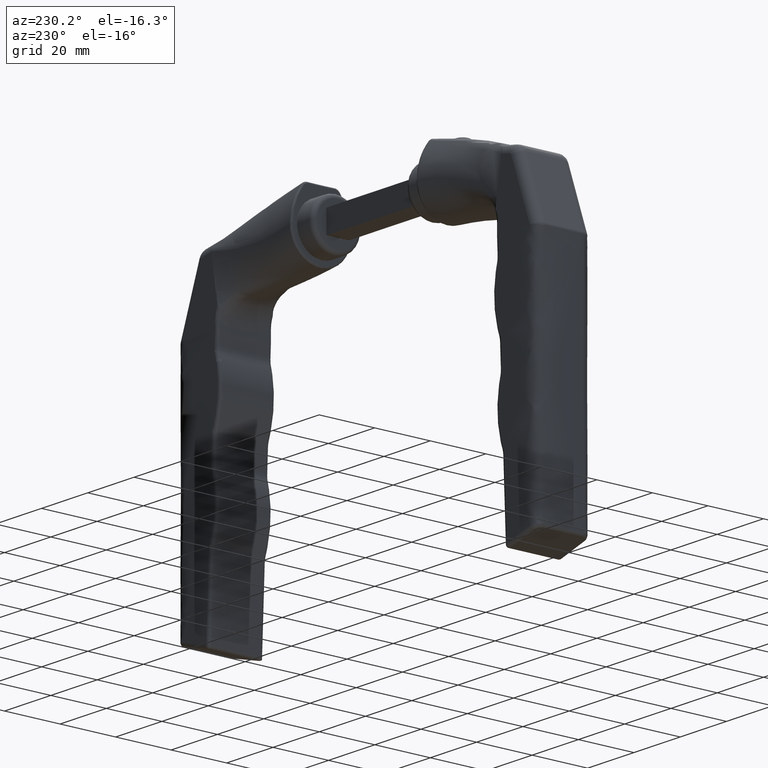
[diagram: clean part render]
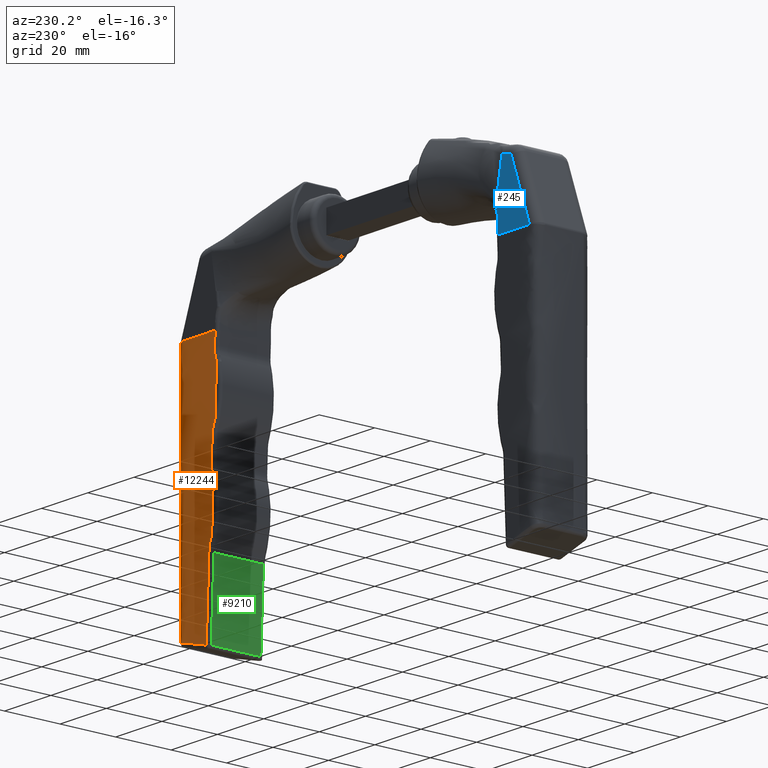
[diagram: same view with three faces highlighted in distinct colors, each labeled with its STEP entity id]
A machine part, auxiliary view with three faces highlighted in distinct colors.
Their STEP definitions:

[orange] entity #12244 — the highlighted face is a freeform B-spline surface patch.
#17 = CARTESIAN_POINT ( 'NONE',  ( -52.17979368904141069, 9.900000000000000355, -34.35993136533918602 ) ) ;
#263 = CARTESIAN_POINT ( 'NONE',  ( -23.40195693432042745, 9.611099347574652896, -49.18895766665092140 ) ) ;
#428 = ORIENTED_EDGE ( 'NONE', *, *, #5237, .F. ) ;
#590 = CARTESIAN_POINT ( 'NONE',  ( -110.2637938839346532, 9.899999879651057100, -48.00308852158844530 ) ) ;
#662 = B_SPLINE_SURFACE_WITH_KNOTS ( 'NONE', 3, 1, ( 
 ( #9048, #3000 ),
 ( #2790, #1927 ),
 ( #14119, #15296 ),
 ( #3202, #9318 ),
 ( #8104, #705 ),
 ( #10394, #1870 ),
 ( #10332, #3097 ),
 ( #13955, #11635 ),
 ( #15141, #14059 ),
 ( #10505, #1978 ),
 ( #3265, #11791 ),
 ( #3149, #5672 ) ),
 .UNSPECIFIED., .F., .F., .F.,
 ( 4, 1, 1, 1, 2, 1, 1, 1, 4 ),
 ( 2, 2 ),
 ( 0.000000000000000000, 0.06827239340379069599, 0.1365447868075813920, 0.2048171802113721296, 0.2730895736151627839, 0.4548171802113720741, 0.6365447868075813087, 0.8182723934037905433, 1.000000000000000000 ),
 ( 0.000000000000000000, 1.000000000000000000 ),
 .UNSPECIFIED. ) ;
#705 = CARTESIAN_POINT ( 'NONE',  ( -23.24939219726212869, 9.730840118225692947, -49.07188427017772625 ) ) ;
#712 = VERTEX_POINT ( 'NONE', #2172 ) ;
#766 = CARTESIAN_POINT ( 'NONE',  ( -85.17979368904141779, 9.900000000000000355, -35.75908674334922210 ) ) ;
#779 = CARTESIAN_POINT ( 'NONE',  ( -27.21894308462057310, 9.900000000000000355, -34.30252347040249106 ) ) ;
#888 = CARTESIAN_POINT ( 'NONE',  ( -23.24939219726211448, 9.900000000000000355, -51.00000000000000711 ) ) ;
#1181 = ORIENTED_EDGE ( 'NONE', *, *, #4828, .T. ) ;
#1430 = CARTESIAN_POINT ( 'NONE',  ( -81.74991106238898908, 9.900000000000000355, -35.61366435780305295 ) ) ;
#1471 = CARTESIAN_POINT ( 'NONE',  ( -55.41245594902475347, 9.899999999999998579, -35.49789029310630895 ) ) ;
#1488 = CARTESIAN_POINT ( 'NONE',  ( -110.2671978391236820, 9.899999999999998579, -47.99117467842682316 ) ) ;
#1534 = CARTESIAN_POINT ( 'NONE',  ( -23.31210949120652387, 9.899999962649125962, -48.21121861218199456 ) ) ;
#1576 = EDGE_CURVE ( 'NONE', #14453, #9990, #14052, .T. ) ;
#1586 = B_SPLINE_CURVE_WITH_KNOTS ( 'NONE', 3,
 ( #14422, #10996, #6140, #1430 ),
 .UNSPECIFIED., .F., .F.,
 ( 4, 4 ),
 ( 5.928593550334433897E-17, 0.003407895719427037669 ),
 .UNSPECIFIED. ) ;
#1618 = CARTESIAN_POINT ( 'NONE',  ( -103.1464092253622766, 9.900000000000000355, -37.52174536705382479 ) ) ;
#1631 = CARTESIAN_POINT ( 'NONE',  ( -112.7301357624490947, 9.900000000000005684, -39.37089194678781467 ) ) ;
#1652 = CARTESIAN_POINT ( 'NONE',  ( -109.7118049940962976, 7.684108211965713586, -50.90212700242874888 ) ) ;
#1770 = CARTESIAN_POINT ( 'NONE',  ( -84.96250164950228623, 9.900000000000002132, -36.75077227378102407 ) ) ;
#1860 = CARTESIAN_POINT ( 'NONE',  ( -109.7228646504340901, 7.876506292746388027, -50.84322812906214750 ) ) ;
#1870 = CARTESIAN_POINT ( 'NONE',  ( -23.24939219726211448, 9.900000000000000355, -48.25212405897629253 ) ) ;
#1927 = CARTESIAN_POINT ( 'NONE',  ( -23.24939219726211448, 7.344657376404036597, -51.00000000000000711 ) ) ;
#1978 = CARTESIAN_POINT ( 'NONE',  ( -23.24939219726210027, 9.899999999999993250, -36.74007470275910947 ) ) ;
#1987 = CARTESIAN_POINT ( 'NONE',  ( -23.24939219726211093, 9.900000000000000355, -34.13421988033179844 ) ) ;
#2172 = CARTESIAN_POINT ( 'NONE',  ( -23.60204615867901623, 6.899999999999995914, -50.99999999999999289 ) ) ;
#2173 = EDGE_CURVE ( 'NONE', #712, #15573, #2207, .T. ) ;
#2207 = LINE ( 'NONE', #8317, #13460 ) ;
#2322 = CARTESIAN_POINT ( 'NONE',  ( -62.31236454806940372, 9.899999999999998579, -35.79043708777694377 ) ) ;
#2538 = ORIENTED_EDGE ( 'NONE', *, *, #3826, .T. ) ;
#2790 = CARTESIAN_POINT ( 'NONE',  ( -114.4475491599999941, 7.257574131600806666, -50.99999999999999289 ) ) ;
#2887 = CARTESIAN_POINT ( 'NONE',  ( -110.1186889457898133, 9.805786580331028901, -48.76500424711555581 ) ) ;
#2986 = CARTESIAN_POINT ( 'NONE',  ( -110.0827055223459610, 9.749104977096518354, -48.95460731831097689 ) ) ;
#3000 = CARTESIAN_POINT ( 'NONE',  ( -23.24939219726211448, 6.899999999999995914, -50.99999999999999289 ) ) ;
#3097 = CARTESIAN_POINT ( 'NONE',  ( -23.24939219726211448, 9.899999999999998579, -46.62388019980903664 ) ) ;
#3149 = CARTESIAN_POINT ( 'NONE',  ( -114.4475491599999941, 9.900000000000000355, -36.99999999999997868 ) ) ;
#3154 = VECTOR ( 'NONE', #8155, 1000.000000000000114 ) ;
#3202 = CARTESIAN_POINT ( 'NONE',  ( -114.4475491599998520, 9.084865584100654701, -50.18486558410059928 ) ) ;
#3265 = CARTESIAN_POINT ( 'NONE',  ( -114.4475491599999941, 9.900000000000000355, -37.95179161443797256 ) ) ;
#3297 = EDGE_CURVE ( 'NONE', #15573, #9843, #12266, .T. ) ;
#3826 = EDGE_CURVE ( 'NONE', #6890, #12358, #14692, .T. ) ;
#3877 = CARTESIAN_POINT ( 'NONE',  ( -49.83885601741741311, 9.900000000000000355, -34.53795280949714908 ) ) ;
#3887 = CARTESIAN_POINT ( 'NONE',  ( -58.86241024854708570, 9.900000000000000355, -35.64416369044163702 ) ) ;
#4035 = CARTESIAN_POINT ( 'NONE',  ( -105.8106822582752358, 9.900000000000000355, -37.63470694106859327 ) ) ;
#4049 = CARTESIAN_POINT ( 'NONE',  ( -23.48095009792866250, 9.193793941493034083, -49.87596852413667392 ) ) ;
#4068 = CARTESIAN_POINT ( 'NONE',  ( -110.2671978391236820, 9.899999999999998579, -47.99117467842682316 ) ) ;
#4163 = CARTESIAN_POINT ( 'NONE',  ( -109.6932480273108013, 6.998723821776618337, -50.99999901977171390 ) ) ;
#4180 = CARTESIAN_POINT ( 'NONE',  ( -63.39668257815249319, 9.900000000000000355, -35.44678677263048883 ) ) ;
#4196 = VECTOR ( 'NONE', #4667, 1000.000000000000000 ) ;
#4236 = B_SPLINE_CURVE_WITH_KNOTS ( 'NONE', 3,
 ( #8817, #9992, #13812, #11314, #6478, #4035, #1618, #11640, #11472, #1770 ),
 .UNSPECIFIED., .F., .F.,
 ( 4, 3, 3, 4 ),
 ( 0.000000000000000000, 0.001999999999999974888, 0.009999999999999974187, 0.02820024434555669368 ),
 .UNSPECIFIED. ) ;
#4276 = CARTESIAN_POINT ( 'NONE',  ( -28.26565381634490848, 9.900000000000002132, -34.34690259008469582 ) ) ;
#4399 = B_SPLINE_CURVE_WITH_KNOTS ( 'NONE', 3,
 ( #12418, #1534, #6344, #263, #11326, #8789, #4049, #7710, #12454, #12608, #12561, #5187, #7617, #5280, #5338, #13681 ),
 .UNSPECIFIED., .F., .F.,
 ( 4, 2, 2, 2, 2, 2, 2, 4 ),
 ( -1.726564283399581362E-05, 0.001208506832471242147, 0.001821393070123859771, 0.002434279307776477611, 0.003047165545429094801, 0.003660051783081712425, 0.004272938020734330482, 0.004885824258386946804 ),
 .UNSPECIFIED. ) ;
#4558 = ORIENTED_EDGE ( 'NONE', *, *, #8293, .T. ) ;
#4585 = LINE ( 'NONE', #888, #4196 ) ;
#4667 = DIRECTION ( 'NONE',  ( 1.941853346959449609E-16, 0.000000000000000000, 1.000000000000000000 ) ) ;
#4692 = CARTESIAN_POINT ( 'NONE',  ( -32.60967631569382519, 9.900000000000000355, -33.53018485106017010 ) ) ;
#4773 = EDGE_CURVE ( 'NONE', #9843, #15275, #12761, .T. ) ;
#4828 = EDGE_CURVE ( 'NONE', #8746, #712, #4399, .T. ) ;
#4918 = DIRECTION ( 'NONE',  ( -0.9991023873423596768, 0.000000000000000000, -0.04236059025553759461 ) ) ;
#5084 = VERTEX_POINT ( 'NONE', #5277 ) ;
#5087 = ORIENTED_EDGE ( 'NONE', *, *, #4773, .T. ) ;
#5131 = CARTESIAN_POINT ( 'NONE',  ( -110.4503617409896350, 9.899999999999998579, -47.35010102189612269 ) ) ;
#5187 = CARTESIAN_POINT ( 'NONE',  ( -23.58417078278439050, 7.899343372613341074, -50.82519040572457669 ) ) ;
#5237 = EDGE_CURVE ( 'NONE', #8746, #9990, #4585, .T. ) ;
#5277 = CARTESIAN_POINT ( 'NONE',  ( -65.60967631569383229, 9.900000000000000355, -34.92934022907022751 ) ) ;
#5280 = CARTESIAN_POINT ( 'NONE',  ( -23.60058249550115406, 7.308466585985742725, -50.97803242674540769 ) ) ;
#5299 = CARTESIAN_POINT ( 'NONE',  ( -110.2297454403744155, 9.894002062256708641, -48.18690767062148694 ) ) ;
#5338 = CARTESIAN_POINT ( 'NONE',  ( -23.60204537097393285, 7.104295412558561118, -50.99999971329877013 ) ) ;
#5423 = CARTESIAN_POINT ( 'NONE',  ( -23.24939219726211448, 9.900000000000000355, -47.80746668257225451 ) ) ;
#5496 = CARTESIAN_POINT ( 'NONE',  ( -110.2578323197761989, 9.899621673930306898, -48.04025620676864605 ) ) ;
#5625 = CARTESIAN_POINT ( 'NONE',  ( -25.19795230101819428, 9.900000000000000355, -34.21683619392412368 ) ) ;
#5672 = CARTESIAN_POINT ( 'NONE',  ( -23.24939219726211093, 9.900000000000000355, -33.13332146124181321 ) ) ;
#6074 = ORIENTED_EDGE ( 'NONE', *, *, #13979, .F. ) ;
#6094 = CARTESIAN_POINT ( 'NONE',  ( -51.96250164950243544, 9.900000000000000355, -35.35161689577105903 ) ) ;
#6140 = CARTESIAN_POINT ( 'NONE',  ( -82.83885601741737048, 9.900000000000000355, -35.93710818750718516 ) ) ;
#6311 = EDGE_LOOP ( 'NONE', ( #6074, #9824, #2538, #14530, #11220, #15108, #6352, #428, #1181, #8150, #9921, #5087, #8942, #4558 ) ) ;
#6344 = CARTESIAN_POINT ( 'NONE',  ( -23.34000882005271293, 9.827249227460697512, -48.61872612651425385 ) ) ;
#6349 = CARTESIAN_POINT ( 'NONE',  ( -32.60967631569382519, 9.900000000000000355, -33.53018485106017010 ) ) ;
#6352 = ORIENTED_EDGE ( 'NONE', *, *, #1576, .T. ) ;
#6426 = CARTESIAN_POINT ( 'NONE',  ( -64.49726146281822992, 9.900000000000000355, -35.15944937955630678 ) ) ;
#6441 = CARTESIAN_POINT ( 'NONE',  ( -111.5492462525791240, 9.900000000000002132, -43.50400523133281183 ) ) ;
#6478 = CARTESIAN_POINT ( 'NONE',  ( -108.4749552911881949, 9.900000000000002132, -37.74766851508336885 ) ) ;
#6605 = CARTESIAN_POINT ( 'NONE',  ( -109.6942039885926476, 7.099333056996577795, -50.99491987227452228 ) ) ;
#6655 = VERTEX_POINT ( 'NONE', #14087 ) ;
#6665 = CARTESIAN_POINT ( 'NONE',  ( -110.2625153912954943, 9.899924077717974669, -48.01573018333388632 ) ) ;
#6713 = CARTESIAN_POINT ( 'NONE',  ( -109.7699402024257580, 8.413714062221327339, -50.59534030853473752 ) ) ;
#6728 = CARTESIAN_POINT ( 'NONE',  ( -24.22367224914015438, 9.899999999999998579, -34.17552803712795395 ) ) ;
#6890 = VERTEX_POINT ( 'NONE', #2322 ) ;
#7452 = CARTESIAN_POINT ( 'NONE',  ( -110.2671978391236820, 9.899999999999998579, -47.99117467842682316 ) ) ;
#7469 = VERTEX_POINT ( 'NONE', #4692 ) ;
#7542 = VECTOR ( 'NONE', #4918, 1000.000000000000114 ) ;
#7562 = CARTESIAN_POINT ( 'NONE',  ( -110.6335091595879305, 9.899999999999998579, -46.70908505680224465 ) ) ;
#7617 = CARTESIAN_POINT ( 'NONE',  ( -23.59158221758484686, 7.707725049541422457, -50.89005482326447094 ) ) ;
#7710 = CARTESIAN_POINT ( 'NONE',  ( -23.51432766117963169, 8.920016524898361610, -50.17728365860943995 ) ) ;
#7728 = CARTESIAN_POINT ( 'NONE',  ( -110.2437842662175598, 9.897590538548985961, -48.11368478105433866 ) ) ;
#7753 = CARTESIAN_POINT ( 'NONE',  ( -112.3228384261123836, 9.900000000000002132, -40.79643262396643166 ) ) ;
#7759 = CARTESIAN_POINT ( 'NONE',  ( -30.39668257815237240, 9.899999999999998579, -34.04763139462046695 ) ) ;
#7968 = CARTESIAN_POINT ( 'NONE',  ( -31.49726146281815886, 9.900000000000000355, -33.76029400154626359 ) ) ;
#8104 = CARTESIAN_POINT ( 'NONE',  ( -114.4475491600000225, 9.770325234824671412, -49.12049971885919319 ) ) ;
#8150 = ORIENTED_EDGE ( 'NONE', *, *, #2173, .T. ) ;
#8155 = DIRECTION ( 'NONE',  ( -0.9991023873423596768, 0.000000000000000000, -0.04236059025553729623 ) ) ;
#8293 = EDGE_CURVE ( 'NONE', #12216, #10205, #1586, .T. ) ;
#8317 = CARTESIAN_POINT ( 'NONE',  ( -68.84847067863104542, 6.899999999999998579, -50.99999999999999289 ) ) ;
#8746 = VERTEX_POINT ( 'NONE', #5423 ) ;
#8789 = CARTESIAN_POINT ( 'NONE',  ( -23.46335858331985591, 9.314601276756322434, -49.71335463822683920 ) ) ;
#8817 = CARTESIAN_POINT ( 'NONE',  ( -113.1374330987859054, 9.900000000000002132, -37.94535126960922611 ) ) ;
#8942 = ORIENTED_EDGE ( 'NONE', *, *, #9206, .T. ) ;
#9048 = CARTESIAN_POINT ( 'NONE',  ( -114.4475491599999941, 6.900000000000000355, -50.99999999999999289 ) ) ;
#9170 = CARTESIAN_POINT ( 'NONE',  ( -26.17223235289624128, 9.900000000000000355, -34.25814435072027919 ) ) ;
#9206 = EDGE_CURVE ( 'NONE', #15275, #12216, #4236, .T. ) ;
#9318 = CARTESIAN_POINT ( 'NONE',  ( -23.24939219726208250, 9.107850375080117189, -50.07794789621998177 ) ) ;
#9625 = CARTESIAN_POINT ( 'NONE',  ( -23.24939219726211093, 9.900000000000000355, -34.13421988033179844 ) ) ;
#9824 = ORIENTED_EDGE ( 'NONE', *, *, #13752, .T. ) ;
#9838 = CARTESIAN_POINT ( 'NONE',  ( -50.91116338936375740, 9.900000000000000355, -34.91741764171559481 ) ) ;
#9843 = VERTEX_POINT ( 'NONE', #7452 ) ;
#9921 = ORIENTED_EDGE ( 'NONE', *, *, #3297, .T. ) ;
#9990 = VERTEX_POINT ( 'NONE', #9625 ) ;
#9991 = CARTESIAN_POINT ( 'NONE',  ( -62.31236454806940372, 9.899999999999998579, -35.79043708777694377 ) ) ;
#9992 = CARTESIAN_POINT ( 'NONE',  ( -112.4713648405576123, 9.900000000000000355, -37.91711087610550379 ) ) ;
#10050 = CARTESIAN_POINT ( 'NONE',  ( -113.1374330987859054, 9.900000000000002132, -37.94535126960922611 ) ) ;
#10153 = CARTESIAN_POINT ( 'NONE',  ( -111.1829514153826892, 9.899999999999998579, -44.78603716152060343 ) ) ;
#10159 = CARTESIAN_POINT ( 'NONE',  ( -29.31236454806923675, 9.900000000000000355, -34.39128170976689347 ) ) ;
#10205 = VERTEX_POINT ( 'NONE', #10222 ) ;
#10222 = CARTESIAN_POINT ( 'NONE',  ( -81.74991106238898908, 9.900000000000000355, -35.61366435780305295 ) ) ;
#10303 = CARTESIAN_POINT ( 'NONE',  ( -109.6932477472456355, 6.900000000000000355, -50.99999999999999289 ) ) ;
#10319 = CARTESIAN_POINT ( 'NONE',  ( -109.7517926628644034, 8.240972410440486229, -50.68942859934905698 ) ) ;
#10332 = CARTESIAN_POINT ( 'NONE',  ( -114.4475491599999799, 9.899999999999998579, -47.04820838556199192 ) ) ;
#10337 = LINE ( 'NONE', #766, #3154 ) ;
#10394 = CARTESIAN_POINT ( 'NONE',  ( -114.4475491599999941, 9.900000000000002132, -48.35757413160078499 ) ) ;
#10505 = CARTESIAN_POINT ( 'NONE',  ( -114.4475491600000510, 9.900000000000009237, -39.79981433601999186 ) ) ;
#10783 = DIRECTION ( 'NONE',  ( -1.000000000000000000, 5.706442543632502005E-17, 7.608590058176669340E-17 ) ) ;
#10996 = CARTESIAN_POINT ( 'NONE',  ( -83.91116338936372188, 9.900000000000002132, -36.31657301972561669 ) ) ;
#11220 = ORIENTED_EDGE ( 'NONE', *, *, #15403, .F. ) ;
#11254 = CARTESIAN_POINT ( 'NONE',  ( -48.74991106238900329, 9.900000000000000355, -34.21450897979300265 ) ) ;
#11280 = CARTESIAN_POINT ( 'NONE',  ( -111.9155410897756440, 9.900000000000002132, -42.22197330114504865 ) ) ;
#11313 = CARTESIAN_POINT ( 'NONE',  ( -65.60967631569383229, 9.900000000000000355, -34.92934022907022751 ) ) ;
#11314 = CARTESIAN_POINT ( 'NONE',  ( -111.1392283241011540, 9.900000000000002132, -37.86063008909813732 ) ) ;
#11326 = CARTESIAN_POINT ( 'NONE',  ( -23.42428485455949172, 9.522848140684658347, -49.37042992477984171 ) ) ;
#11346 = CARTESIAN_POINT ( 'NONE',  ( -110.2508074919048227, 9.898942202908639132, -48.07701511194028399 ) ) ;
#11472 = CARTESIAN_POINT ( 'NONE',  ( -91.02380417478894969, 9.900000000000002132, -37.00776330487197185 ) ) ;
#11505 = CARTESIAN_POINT ( 'NONE',  ( -109.8124252006057446, 8.741127055298358428, -50.37428216288120808 ) ) ;
#11555 = CARTESIAN_POINT ( 'NONE',  ( -109.6979488518111623, 7.296164516004143508, -50.97516720227649500 ) ) ;
#11635 = CARTESIAN_POINT ( 'NONE',  ( -23.24939219726211448, 9.899999999999995026, -44.20071344105487299 ) ) ;
#11640 = CARTESIAN_POINT ( 'NONE',  ( -97.08510670007561316, 9.900000000000000355, -37.26475433596289122 ) ) ;
#11708 = CARTESIAN_POINT ( 'NONE',  ( -29.31236454806923675, 9.900000000000000355, -34.39128170976689347 ) ) ;
#11791 = CARTESIAN_POINT ( 'NONE',  ( -23.24939219726211448, 9.900000000000000355, -34.31690794400503108 ) ) ;
#12158 = EDGE_CURVE ( 'NONE', #12358, #6655, #15042, .T. ) ;
#12216 = VERTEX_POINT ( 'NONE', #12478 ) ;
#12244 = ADVANCED_FACE ( 'NONE', ( #15732 ), #662, .T. ) ;
#12266 = B_SPLINE_CURVE_WITH_KNOTS ( 'NONE', 3,
 ( #12725, #4163, #6605, #11555, #15126, #1652, #1860, #10319, #6713, #11505, #12580, #13797, #13844, #2986, #2887, #12670, #13945, #14982, #5299, #7728, #11346, #5496, #6665, #590, #4068 ),
 .UNSPECIFIED., .F., .F.,
 ( 4, 2, 2, 2, 2, 2, 2, 2, 2, 2, 1, 2, 4 ),
 ( -5.999999998985992500E-08, 0.0002961114653455231265, 0.0005922829306910361389, 0.001184625861382064766, 0.001776968792073093393, 0.002369311722764122236, 0.003553997584146179490, 0.004146340514837199009, 0.004442511980182698578, 0.004590597712855462240, 0.004664640579191848407, 0.004701662012360047563, 0.004738683445528246718 ),
 .UNSPECIFIED. ) ;
#12295 = CARTESIAN_POINT ( 'NONE',  ( -62.31236454806940372, 9.899999999999998579, -35.79043708777694377 ) ) ;
#12358 = VERTEX_POINT ( 'NONE', #6094 ) ;
#12418 = CARTESIAN_POINT ( 'NONE',  ( -23.24939219726211448, 9.900000000000000355, -47.80746668257225451 ) ) ;
#12454 = CARTESIAN_POINT ( 'NONE',  ( -23.52914859731120600, 8.770425259116805705, -50.31259474984549485 ) ) ;
#12473 = CARTESIAN_POINT ( 'NONE',  ( -113.1374330987859054, 9.900000000000002132, -37.94535126960922611 ) ) ;
#12478 = CARTESIAN_POINT ( 'NONE',  ( -84.96250164950228623, 9.900000000000002132, -36.75077227378102407 ) ) ;
#12502 = CARTESIAN_POINT ( 'NONE',  ( -110.2672033335462345, 9.899999999999998579, -47.99115544794788235 ) ) ;
#12561 = CARTESIAN_POINT ( 'NONE',  ( -23.56523121241525232, 8.267747932719798243, -50.65667105809300352 ) ) ;
#12580 = CARTESIAN_POINT ( 'NONE',  ( -109.8366730899431758, 8.894808524043540388, -50.24734660794246821 ) ) ;
#12608 = CARTESIAN_POINT ( 'NONE',  ( -23.55451050439256022, 8.445327016301273915, -50.55195774015435717 ) ) ;
#12670 = CARTESIAN_POINT ( 'NONE',  ( -110.1738599445655211, 9.862124329870322725, -48.47751661246513777 ) ) ;
#12725 = CARTESIAN_POINT ( 'NONE',  ( -109.6932477472456355, 6.900000000000000355, -50.99999999999999289 ) ) ;
#12761 = B_SPLINE_CURVE_WITH_KNOTS ( 'NONE', 3,
 ( #1488, #12502, #13783, #14843, #5131, #7562, #13739, #10153, #6441, #11280, #7753, #1631, #10050 ),
 .UNSPECIFIED., .F., .F.,
 ( 4, 3, 3, 3, 4 ),
 ( -5.999999997484344698E-08, 0.000000000000000000, 0.002000000000000006547, 0.006000000000000014870, 0.01044775404921415018 ),
 .UNSPECIFIED. ) ;
#13460 = VECTOR ( 'NONE', #10783, 1000.000000000000000 ) ;
#13525 = EDGE_CURVE ( 'NONE', #7469, #14453, #15129, .T. ) ;
#13681 = CARTESIAN_POINT ( 'NONE',  ( -23.60204615867901623, 6.899999999999995914, -50.99999999999999289 ) ) ;
#13739 = CARTESIAN_POINT ( 'NONE',  ( -110.8166565781861834, 9.899999999999998579, -46.06806909170836661 ) ) ;
#13752 = EDGE_CURVE ( 'NONE', #5084, #6890, #14492, .T. ) ;
#13783 = CARTESIAN_POINT ( 'NONE',  ( -110.2672088279688438, 9.900000000000000355, -47.99113621746894864 ) ) ;
#13797 = CARTESIAN_POINT ( 'NONE',  ( -109.9144059337565835, 9.307045920761932933, -49.82968041903276202 ) ) ;
#13812 = CARTESIAN_POINT ( 'NONE',  ( -111.8052965823293903, 9.900000000000002132, -37.88887048260183121 ) ) ;
#13844 = CARTESIAN_POINT ( 'NONE',  ( -109.9806736195052679, 9.526966765345470378, -49.49455438260011420 ) ) ;
#13945 = CARTESIAN_POINT ( 'NONE',  ( -110.1924185495511637, 9.876228766283794869, -48.38109693754076090 ) ) ;
#13955 = CARTESIAN_POINT ( 'NONE',  ( -114.4475491599999515, 9.900000000000002132, -45.20018566397997262 ) ) ;
#13979 = EDGE_CURVE ( 'NONE', #5084, #10205, #10337, .T. ) ;
#13989 = LINE ( 'NONE', #17, #7542 ) ;
#14005 = CARTESIAN_POINT ( 'NONE',  ( -29.31236454806923675, 9.900000000000000355, -34.39128170976689347 ) ) ;
#14052 = B_SPLINE_CURVE_WITH_KNOTS ( 'NONE', 3,
 ( #14005, #4276, #779, #9170, #5625, #6728, #1987 ),
 .UNSPECIFIED., .F., .F.,
 ( 4, 3, 4 ),
 ( 0.08390037859252214014, 0.08704333194240436444, 0.08996879803343130200 ),
 .UNSPECIFIED. ) ;
#14059 = CARTESIAN_POINT ( 'NONE',  ( -23.24939219726211803, 9.900000000000011013, -40.47039407190710136 ) ) ;
#14087 = CARTESIAN_POINT ( 'NONE',  ( -48.74991106238900329, 9.900000000000000355, -34.21450897979300265 ) ) ;
#14119 = CARTESIAN_POINT ( 'NONE',  ( -114.4475491600000510, 8.020499718859218419, -50.87032523482471191 ) ) ;
#14422 = CARTESIAN_POINT ( 'NONE',  ( -84.96250164950228623, 9.900000000000002132, -36.75077227378102407 ) ) ;
#14453 = VERTEX_POINT ( 'NONE', #11708 ) ;
#14492 = B_SPLINE_CURVE_WITH_KNOTS ( 'NONE', 3,
 ( #11313, #6426, #4180, #9991 ),
 .UNSPECIFIED., .F., .F.,
 ( 4, 4 ),
 ( -5.999999999995866208E-08, 0.003407835719440053222 ),
 .UNSPECIFIED. ) ;
#14530 = ORIENTED_EDGE ( 'NONE', *, *, #12158, .T. ) ;
#14692 = B_SPLINE_CURVE_WITH_KNOTS ( 'NONE', 3,
 ( #12295, #3887, #1471, #14821 ),
 .UNSPECIFIED., .F., .F.,
 ( 4, 4 ),
 ( 0.05087073076255239218, 0.06122989217552618491 ),
 .UNSPECIFIED. ) ;
#14821 = CARTESIAN_POINT ( 'NONE',  ( -51.96250164950243544, 9.900000000000000355, -35.35161689577105903 ) ) ;
#14843 = CARTESIAN_POINT ( 'NONE',  ( -110.2672143223913963, 9.900000000000000355, -47.99111698699000073 ) ) ;
#14861 = CARTESIAN_POINT ( 'NONE',  ( -51.96250164950243544, 9.900000000000000355, -35.35161689577105903 ) ) ;
#14982 = CARTESIAN_POINT ( 'NONE',  ( -110.2203965424300947, 9.890430523008587826, -48.23556782447153779 ) ) ;
#15042 = B_SPLINE_CURVE_WITH_KNOTS ( 'NONE', 3,
 ( #14861, #9838, #3877, #11254 ),
 .UNSPECIFIED., .F., .F.,
 ( 4, 4 ),
 ( 0.000000000000000000, 0.003407895719427176447 ),
 .UNSPECIFIED. ) ;
#15108 = ORIENTED_EDGE ( 'NONE', *, *, #13525, .T. ) ;
#15126 = CARTESIAN_POINT ( 'NONE',  ( -109.7007373325568835, 7.393761219761864290, -50.96048930217199313 ) ) ;
#15129 = B_SPLINE_CURVE_WITH_KNOTS ( 'NONE', 3,
 ( #6349, #7968, #7759, #10159 ),
 .UNSPECIFIED., .F., .F.,
 ( 4, 4 ),
 ( -5.999999998754122524E-08, 0.003407835719440213684 ),
 .UNSPECIFIED. ) ;
#15141 = CARTESIAN_POINT ( 'NONE',  ( -114.4475491599999231, 9.899999999999995026, -42.49999999999998579 ) ) ;
#15275 = VERTEX_POINT ( 'NONE', #12473 ) ;
#15296 = CARTESIAN_POINT ( 'NONE',  ( -23.24939219726214645, 8.162142724607610589, -50.79389099027051202 ) ) ;
#15403 = EDGE_CURVE ( 'NONE', #7469, #6655, #13989, .T. ) ;
#15573 = VERTEX_POINT ( 'NONE', #10303 ) ;
#15732 = FACE_OUTER_BOUND ( 'NONE', #6311, .T. ) ;

[blue] entity #245 — the highlighted planar face has unit normal (0, 1, 0).
#245 = ADVANCED_FACE ( 'NONE', ( #11575 ), #4292, .T. ) ;
#346 = CARTESIAN_POINT ( 'NONE',  ( -11.99644074155315820, -9.900000000000053646, -33.67100551895871519 ) ) ;
#414 = CARTESIAN_POINT ( 'NONE',  ( -15.95531980052405885, -9.900000000000057199, -33.46119010940056882 ) ) ;
#463 = CARTESIAN_POINT ( 'NONE',  ( -18.26112991574357380, -9.900000000000057199, -34.06586245655638123 ) ) ;
#798 = DIRECTION ( 'NONE',  ( 0.000000000000000000, -0.000000000000000000, -1.000000000000000000 ) ) ;
#815 = VERTEX_POINT ( 'NONE', #6431 ) ;
#829 = CARTESIAN_POINT ( 'NONE',  ( 12.64536136770196428, -9.900000000000050093, -34.74284481860473761 ) ) ;
#971 = VECTOR ( 'NONE', #1627, 1000.000000000000000 ) ;
#994 = EDGE_CURVE ( 'NONE', #9469, #5328, #8714, .T. ) ;
#1139 = ORIENTED_EDGE ( 'NONE', *, *, #3698, .T. ) ;
#1293 = DIRECTION ( 'NONE',  ( 0.1736481776669284161, -0.000000000000000000, 0.9848077530122084644 ) ) ;
#1627 = DIRECTION ( 'NONE',  ( 1.941853346959463414E-16, 0.000000000000000000, 1.000000000000000000 ) ) ;
#1670 = CARTESIAN_POINT ( 'NONE',  ( -12.01162556316919172, -9.900000000000046541, -33.66716012402571323 ) ) ;
#1867 = ORIENTED_EDGE ( 'NONE', *, *, #994, .T. ) ;
#2041 = DIRECTION ( 'NONE',  ( 0.9396926207859092051, -0.000000000000000000, 0.3420201433256664925 ) ) ;
#2137 = B_SPLINE_CURVE_WITH_KNOTS ( 'NONE', 3,
 ( #13371, #14587, #5192, #6500, #14883, #12461, #4006 ),
 .UNSPECIFIED., .F., .F.,
 ( 4, 3, 4 ),
 ( 0.000000000000000000, 4.098421339246907923E-05, 0.0006576513718146462196 ),
 .UNSPECIFIED. ) ;
#2285 = LINE ( 'NONE', #2409, #6852 ) ;
#2346 = B_SPLINE_CURVE_WITH_KNOTS ( 'NONE', 3,
 ( #3005, #13912, #2799, #13809 ),
 .UNSPECIFIED., .F., .F.,
 ( 4, 4 ),
 ( 0.000000000000000000, 0.002969993938672619432 ),
 .UNSPECIFIED. ) ;
#2409 = CARTESIAN_POINT ( 'NONE',  ( 5.908846518073279874, -9.900000000000050093, -1.041889066001562503 ) ) ;
#2655 = ORIENTED_EDGE ( 'NONE', *, *, #9185, .T. ) ;
#2723 = VERTEX_POINT ( 'NONE', #14718 ) ;
#2735 = DIRECTION ( 'NONE',  ( -0.000000000000000000, 1.000000000000000000, -0.000000000000000000 ) ) ;
#2745 = CARTESIAN_POINT ( 'NONE',  ( -2.188983439292830013, -9.900000000000053646, -35.45122581699232001 ) ) ;
#2799 = CARTESIAN_POINT ( 'NONE',  ( -13.99768629961673128, -9.900000000000050093, -33.47148679999177290 ) ) ;
#2993 = LINE ( 'NONE', #9190, #6991 ) ;
#3005 = CARTESIAN_POINT ( 'NONE',  ( -12.02722219624816091, -9.900000000000050093, -33.66563116393430022 ) ) ;
#3604 = CARTESIAN_POINT ( 'NONE',  ( -23.24232972645996398, -9.900000000000050093, -34.13392040730180810 ) ) ;
#3660 = CARTESIAN_POINT ( 'NONE',  ( -23.24939219726220685, -9.900000000000050093, -34.13421988033179844 ) ) ;
#3698 = EDGE_CURVE ( 'NONE', #5104, #6996, #5027, .T. ) ;
#3920 = EDGE_CURVE ( 'NONE', #11811, #815, #2346, .T. ) ;
#3984 = CARTESIAN_POINT ( 'NONE',  ( -5.138494610835049770, -9.900000000000053646, -34.90478860468498823 ) ) ;
#4006 = CARTESIAN_POINT ( 'NONE',  ( -15.63898456320459296, -9.900000000000051870, -33.32678841170837103 ) ) ;
#4292 = PLANE ( 'NONE',  #8283 ) ;
#4339 = CARTESIAN_POINT ( 'NONE',  ( -12.02722219624816091, -9.900000000000050093, -33.66563116393430022 ) ) ;
#4351 = VERTEX_POINT ( 'NONE', #6316 ) ;
#4372 = ORIENTED_EDGE ( 'NONE', *, *, #13400, .T. ) ;
#4405 = CARTESIAN_POINT ( 'NONE',  ( -23.24939219726221040, -9.900000000000050093, -47.80746668257226872 ) ) ;
#4977 = ORIENTED_EDGE ( 'NONE', *, *, #15658, .T. ) ;
#5000 = EDGE_CURVE ( 'NONE', #9469, #10681, #6136, .T. ) ;
#5027 = B_SPLINE_CURVE_WITH_KNOTS ( 'NONE', 3,
 ( #13738, #414, #13827, #15017, #6439, #463, #7752, #12417 ),
 .UNSPECIFIED., .F., .F.,
 ( 4, 2, 2, 4 ),
 ( 0.0005386660461800615472, 0.001569763809639809250, 0.002600861573099557279, 0.004663057100019052902 ),
 .UNSPECIFIED. ) ;
#5104 = VERTEX_POINT ( 'NONE', #9232 ) ;
#5192 = CARTESIAN_POINT ( 'NONE',  ( -15.01099784346967070, -9.900000000000050093, -33.38104821950103940 ) ) ;
#5328 = VERTEX_POINT ( 'NONE', #8475 ) ;
#5375 = CARTESIAN_POINT ( 'NONE',  ( -10.05825567466880344, -9.900000000000050093, -34.01547688003254422 ) ) ;
#5887 = EDGE_CURVE ( 'NONE', #4351, #2723, #2285, .T. ) ;
#6055 = VECTOR ( 'NONE', #2041, 1000.000000000000000 ) ;
#6136 = LINE ( 'NONE', #10002, #971 ) ;
#6316 = CARTESIAN_POINT ( 'NONE',  ( -0.8027921678175906628, -9.900000000000050093, -39.10548352513765025 ) ) ;
#6427 = CARTESIAN_POINT ( 'NONE',  ( -12.02722219624816091, -9.900000000000050093, -33.66563116393430022 ) ) ;
#6431 = CARTESIAN_POINT ( 'NONE',  ( -14.98378303760360808, -9.900000000000050093, -33.38347520153819659 ) ) ;
#6439 = CARTESIAN_POINT ( 'NONE',  ( -17.26301764131362759, -9.900000000000057199, -33.86578615416278382 ) ) ;
#6500 = CARTESIAN_POINT ( 'NONE',  ( -15.02460551686989909, -9.900000000000050093, -33.37983776645944545 ) ) ;
#6525 = CARTESIAN_POINT ( 'NONE',  ( -1.206361740373928626, -9.900000000000051870, -35.63631632917042680 ) ) ;
#6564 = CARTESIAN_POINT ( 'NONE',  ( -11.81188592013338123, -9.900000000000048317, -33.70400487306792314 ) ) ;
#6852 = VECTOR ( 'NONE', #1293, 1000.000000000000000 ) ;
#6957 = DIRECTION ( 'NONE',  ( 0.000000000000000000, -1.000000000000000000, 0.000000000000000000 ) ) ;
#6991 = VECTOR ( 'NONE', #12978, 1000.000000000000000 ) ;
#6996 = VERTEX_POINT ( 'NONE', #9797 ) ;
#7297 = EDGE_CURVE ( 'NONE', #4351, #5328, #14993, .T. ) ;
#7655 = CARTESIAN_POINT ( 'NONE',  ( -8.089522960931189388, -9.900000000000057199, -34.36663613964298492 ) ) ;
#7698 = CARTESIAN_POINT ( 'NONE',  ( -11.96568228318528071, -9.900000000000055422, -33.67650922806434011 ) ) ;
#7752 = CARTESIAN_POINT ( 'NONE',  ( -18.93774659654077297, -9.900000000000048317, -34.13332146124182032 ) ) ;
#7797 = CARTESIAN_POINT ( 'NONE',  ( -9.565975809913940253, -9.900000000000053646, -34.10272326475621441 ) ) ;
#8283 = AXIS2_PLACEMENT_3D ( 'NONE', #12918, #6957, #798 ) ;
#8460 = CARTESIAN_POINT ( 'NONE',  ( -23.23526725565767492, -9.900000000000050093, -34.13362093427181065 ) ) ;
#8475 = CARTESIAN_POINT ( 'NONE',  ( -1.445579777504132135, -9.900000000000050093, -39.87152796825661483 ) ) ;
#8494 = VERTEX_POINT ( 'NONE', #9107 ) ;
#8582 = AXIS2_PLACEMENT_3D ( 'NONE', #8902, #2735, #12433 ) ;
#8714 = LINE ( 'NONE', #829, #6055 ) ;
#8860 = CARTESIAN_POINT ( 'NONE',  ( -10.79666688206154213, -9.900000000000048317, -33.88455902107445183 ) ) ;
#8902 = CARTESIAN_POINT ( 'NONE',  ( -1.787599920829802347, -9.900000000000050093, -38.93183534747071661 ) ) ;
#8949 = ORIENTED_EDGE ( 'NONE', *, *, #7297, .F. ) ;
#9032 = ORIENTED_EDGE ( 'NONE', *, *, #10426, .T. ) ;
#9107 = CARTESIAN_POINT ( 'NONE',  ( -23.22820478485533613, -9.900000000000050093, -34.13332146124182032 ) ) ;
#9185 = EDGE_CURVE ( 'NONE', #2723, #11811, #15099, .T. ) ;
#9190 = CARTESIAN_POINT ( 'NONE',  ( 0.000000000000000000, -9.900000000000050093, -34.13332146124182032 ) ) ;
#9232 = CARTESIAN_POINT ( 'NONE',  ( -15.63898456320459296, -9.900000000000051870, -33.32678841170837103 ) ) ;
#9469 = VERTEX_POINT ( 'NONE', #4405 ) ;
#9797 = CARTESIAN_POINT ( 'NONE',  ( -19.62583255075703548, -9.900000000000050093, -34.13332146124182032 ) ) ;
#10002 = CARTESIAN_POINT ( 'NONE',  ( -23.24939219726221040, -9.900000000000050093, -51.00000000000000711 ) ) ;
#10093 = CARTESIAN_POINT ( 'NONE',  ( -0.2233950279880495271, -9.900000000000050093, -35.81955905968385423 ) ) ;
#10163 = ORIENTED_EDGE ( 'NONE', *, *, #3920, .T. ) ;
#10166 = B_SPLINE_CURVE_WITH_KNOTS ( 'NONE', 3,
 ( #13341, #8460, #3604, #3660 ),
 .UNSPECIFIED., .F., .F.,
 ( 4, 4 ),
 ( 0.000000000000000000, 1.000000000000000000 ),
 .UNSPECIFIED. ) ;
#10426 = EDGE_CURVE ( 'NONE', #6996, #8494, #2993, .T. ) ;
#10681 = VERTEX_POINT ( 'NONE', #13210 ) ;
#11575 = FACE_OUTER_BOUND ( 'NONE', #12198, .T. ) ;
#11811 = VERTEX_POINT ( 'NONE', #4339 ) ;
#11841 = ORIENTED_EDGE ( 'NONE', *, *, #5887, .T. ) ;
#12198 = EDGE_LOOP ( 'NONE', ( #11841, #2655, #10163, #4372, #1139, #9032, #4977, #13931, #1867, #8949 ) ) ;
#12417 = CARTESIAN_POINT ( 'NONE',  ( -19.62583255075703548, -9.900000000000050093, -34.13332146124182032 ) ) ;
#12433 = DIRECTION ( 'NONE',  ( 1.235990476633473950E-14, 0.000000000000000000, -1.000000000000000000 ) ) ;
#12461 = CARTESIAN_POINT ( 'NONE',  ( -15.43414001690853254, -9.900000000000050093, -33.34386423376368214 ) ) ;
#12485 = CARTESIAN_POINT ( 'NONE',  ( -11.91954419324161840, -9.900000000000066080, -33.68476252827317552 ) ) ;
#12543 = CARTESIAN_POINT ( 'NONE',  ( -11.16587026908654501, -9.900000000000082068, -33.81908762284394498 ) ) ;
#12639 = CARTESIAN_POINT ( 'NONE',  ( -4.155043480918501508, -9.900000000000051870, -35.08541847529552626 ) ) ;
#12918 = CARTESIAN_POINT ( 'NONE',  ( 0.000000000000000000, -9.900000000000050093, 0.000000000000000000 ) ) ;
#12978 = DIRECTION ( 'NONE',  ( -1.000000000000000000, -0.000000000000000000, -0.000000000000000000 ) ) ;
#13210 = CARTESIAN_POINT ( 'NONE',  ( -23.24939219726220685, -9.900000000000050093, -34.13421988033179844 ) ) ;
#13341 = CARTESIAN_POINT ( 'NONE',  ( -23.22820478485533613, -9.900000000000050093, -34.13332146124182032 ) ) ;
#13371 = CARTESIAN_POINT ( 'NONE',  ( -14.98378303760360808, -9.900000000000050093, -33.38347520153819659 ) ) ;
#13400 = EDGE_CURVE ( 'NONE', #815, #5104, #2137, .T. ) ;
#13738 = CARTESIAN_POINT ( 'NONE',  ( -15.63898456320459296, -9.900000000000051870, -33.32678841170837103 ) ) ;
#13771 = CARTESIAN_POINT ( 'NONE',  ( -11.59655914917924235, -9.900000000000050093, -33.74243204862317214 ) ) ;
#13809 = CARTESIAN_POINT ( 'NONE',  ( -14.98378303760360808, -9.900000000000050093, -33.38347520153819659 ) ) ;
#13827 = CARTESIAN_POINT ( 'NONE',  ( -16.27937652139560498, -9.900000000000057199, -33.58059463615300189 ) ) ;
#13912 = CARTESIAN_POINT ( 'NONE',  ( -13.01249964333922726, -9.900000000000050093, -33.56903465605806502 ) ) ;
#13931 = ORIENTED_EDGE ( 'NONE', *, *, #5000, .F. ) ;
#14587 = CARTESIAN_POINT ( 'NONE',  ( -14.99739035158504130, -9.900000000000050093, -33.38226071475609302 ) ) ;
#14718 = CARTESIAN_POINT ( 'NONE',  ( -0.2233950279880495271, -9.900000000000050093, -35.81955905968385423 ) ) ;
#14883 = CARTESIAN_POINT ( 'NONE',  ( -15.22935209110375609, -9.900000000000050093, -33.36162479894853305 ) ) ;
#14905 = CARTESIAN_POINT ( 'NONE',  ( -7.105736810321511499, -9.900000000000053646, -34.54542196321768444 ) ) ;
#14993 = CIRCLE ( 'NONE', #8582, 1.000000000000000888 ) ;
#15017 = CARTESIAN_POINT ( 'NONE',  ( -16.93314588218061445, -9.900000000000055422, -33.78243507996190687 ) ) ;
#15099 = B_SPLINE_CURVE_WITH_KNOTS ( 'NONE', 3,
 ( #10093, #6525, #2745, #12639, #3984, #14905, #7655, #7797, #5375, #8860, #12543, #13771, #6564, #12485, #7698, #346, #1670, #6427 ),
 .UNSPECIFIED., .F., .F.,
 ( 4, 2, 2, 2, 2, 1, 1, 1, 1, 2, 4 ),
 ( 1.897353801849621445E-19, 0.002999702043397002929, 0.005999404086794004991, 0.008999106130191007052, 0.01049895715188951285, 0.01124888266273876836, 0.01162384541816340044, 0.01181132679587571822, 0.01190506748473187798, 0.01195193782915996046, 0.01199880817358804121 ),
 .UNSPECIFIED. ) ;
#15658 = EDGE_CURVE ( 'NONE', #8494, #10681, #10166, .T. ) ;

[green] entity #9210 — the highlighted planar face has unit normal (-0.9991, 0, -0.0424).
#827 = CARTESIAN_POINT ( 'NONE',  ( -113.1797936890414036, -8.900000000000002132, -36.94624888226684334 ) ) ;
#936 = CARTESIAN_POINT ( 'NONE',  ( -86.80146367482173275, 8.900000000000002132, -35.82784335795413710 ) ) ;
#1157 = VERTEX_POINT ( 'NONE', #1207 ) ;
#1187 = CARTESIAN_POINT ( 'NONE',  ( -86.80146367482173275, 8.900000000000002132, -35.82784335795413710 ) ) ;
#1207 = CARTESIAN_POINT ( 'NONE',  ( -113.1797936890414036, -8.900000000000002132, -36.94624888226684334 ) ) ;
#1634 = ORIENTED_EDGE ( 'NONE', *, *, #14903, .T. ) ;
#1852 = VERTEX_POINT ( 'NONE', #1187 ) ;
#1934 = CARTESIAN_POINT ( 'NONE',  ( -97.72633443535245590, -8.900000000000002132, -36.29104310579236170 ) ) ;
#1985 = DIRECTION ( 'NONE',  ( -0.04236059025553762930, 0.000000000000000000, 0.9991023873423596768 ) ) ;
#2313 = ORIENTED_EDGE ( 'NONE', *, *, #6368, .T. ) ;
#3067 = DIRECTION ( 'NONE',  ( -0.000000000000000000, -1.000000000000000000, -0.000000000000000000 ) ) ;
#3230 = CARTESIAN_POINT ( 'NONE',  ( -86.80146367482173275, 9.900000000000000355, -35.82784335795413710 ) ) ;
#3383 = CARTESIAN_POINT ( 'NONE',  ( -87.05248686742467612, 8.900000000000002132, -35.83848640189159340 ) ) ;
#3442 = CARTESIAN_POINT ( 'NONE',  ( -101.1738096046571513, 8.900000000000002132, -36.43721139135869436 ) ) ;
#3982 = LINE ( 'NONE', #3230, #7215 ) ;
#4608 = CARTESIAN_POINT ( 'NONE',  ( -87.17799846372612649, 8.900000000000002132, -35.84380792386031089 ) ) ;
#5626 = CARTESIAN_POINT ( 'NONE',  ( -112.5137254308131673, -8.900000000000002132, -36.91800848876314944 ) ) ;
#5646 = CARTESIAN_POINT ( 'NONE',  ( -113.1797936890414036, 8.900000000000003908, -36.94624888226684334 ) ) ;
#5795 = CARTESIAN_POINT ( 'NONE',  ( -111.8476571725849169, -8.899999999999998579, -36.88976809525946265 ) ) ;
#6368 = EDGE_CURVE ( 'NONE', #10434, #1157, #10028, .T. ) ;
#6393 = ORIENTED_EDGE ( 'NONE', *, *, #8795, .T. ) ;
#6684 = CARTESIAN_POINT ( 'NONE',  ( -114.4475491599999941, 9.900000000000000355, -36.99999999999997868 ) ) ;
#6839 = CARTESIAN_POINT ( 'NONE',  ( -113.1797936890414036, 8.900000000000003908, -36.94624888226684334 ) ) ;
#6888 = CARTESIAN_POINT ( 'NONE',  ( -86.80146367482173275, -8.899999999999998579, -35.82784335795413710 ) ) ;
#6941 = CARTESIAN_POINT ( 'NONE',  ( -92.26389905508709433, -8.900000000000002132, -36.05944323187323874 ) ) ;
#7215 = VECTOR ( 'NONE', #11095, 1000.000000000000000 ) ;
#8099 = EDGE_CURVE ( 'NONE', #12323, #1852, #3982, .T. ) ;
#8329 = ORIENTED_EDGE ( 'NONE', *, *, #8099, .T. ) ;
#8795 = EDGE_CURVE ( 'NONE', #1852, #10434, #12698, .T. ) ;
#8964 = PLANE ( 'NONE',  #10539 ) ;
#9210 = ADVANCED_FACE ( 'NONE', ( #11980 ), #8964, .T. ) ;
#10028 = LINE ( 'NONE', #15154, #12748 ) ;
#10197 = EDGE_LOOP ( 'NONE', ( #1634, #8329, #6393, #2313 ) ) ;
#10434 = VERTEX_POINT ( 'NONE', #5646 ) ;
#10539 = AXIS2_PLACEMENT_3D ( 'NONE', #6684, #1985, #15251 ) ;
#10637 = CARTESIAN_POINT ( 'NONE',  ( -86.92697527112319733, 8.900000000000002132, -35.83316487992287591 ) ) ;
#11095 = DIRECTION ( 'NONE',  ( -0.000000000000000000, 1.000000000000000000, -0.000000000000000000 ) ) ;
#11980 = FACE_OUTER_BOUND ( 'NONE', #10197, .T. ) ;
#12206 = CARTESIAN_POINT ( 'NONE',  ( -86.80146367482173275, -8.899999999999998579, -35.82784335795413710 ) ) ;
#12323 = VERTEX_POINT ( 'NONE', #12206 ) ;
#12698 = B_SPLINE_CURVE_WITH_KNOTS ( 'NONE', 3,
 ( #936, #10637, #3383, #4608, #14344, #15420, #15534, #3442, #12902, #6839 ),
 .UNSPECIFIED., .F., .F.,
 ( 4, 3, 3, 4 ),
 ( 0.001623126925053209072, 0.002000000000000003511, 0.01000000000000000194, 0.02802515573451963907 ),
 .UNSPECIFIED. ) ;
#12748 = VECTOR ( 'NONE', #3067, 1000.000000000000000 ) ;
#12902 = CARTESIAN_POINT ( 'NONE',  ( -107.1768016468492704, 8.900000000000002132, -36.69173013681275819 ) ) ;
#14067 = CARTESIAN_POINT ( 'NONE',  ( -103.1887698156178033, -8.900000000000002132, -36.52264297971147045 ) ) ;
#14128 = CARTESIAN_POINT ( 'NONE',  ( -108.5173158814437215, -8.899999999999998579, -36.74856612774100029 ) ) ;
#14170 = CARTESIAN_POINT ( 'NONE',  ( -111.1815889143566807, -8.899999999999998579, -36.86152770175576876 ) ) ;
#14344 = CARTESIAN_POINT ( 'NONE',  ( -89.84227149663908563, 8.900000000000002132, -35.95676949787507937 ) ) ;
#14903 = EDGE_CURVE ( 'NONE', #1157, #12323, #14973, .T. ) ;
#14973 = B_SPLINE_CURVE_WITH_KNOTS ( 'NONE', 3,
 ( #827, #5626, #5795, #14170, #14128, #15417, #14067, #1934, #6941, #6888 ),
 .UNSPECIFIED., .F., .F.,
 ( 4, 3, 3, 4 ),
 ( 0.000000000000000000, 0.002000000000000003511, 0.01000000000000000021, 0.02640202880946642197 ),
 .UNSPECIFIED. ) ;
#15154 = CARTESIAN_POINT ( 'NONE',  ( -113.1797936890414036, -9.899999999999993250, -36.94624888226684334 ) ) ;
#15251 = DIRECTION ( 'NONE',  ( 0.000000000000000000, -1.000000000000000000, 0.000000000000000000 ) ) ;
#15417 = CARTESIAN_POINT ( 'NONE',  ( -105.8530428485307624, -8.900000000000002132, -36.63560455372623892 ) ) ;
#15420 = CARTESIAN_POINT ( 'NONE',  ( -92.50654452955204476, 8.900000000000002132, -36.06973107188984073 ) ) ;
#15534 = CARTESIAN_POINT ( 'NONE',  ( -95.17081756246500390, 8.900000000000002132, -36.18269264590460921 ) ) ;